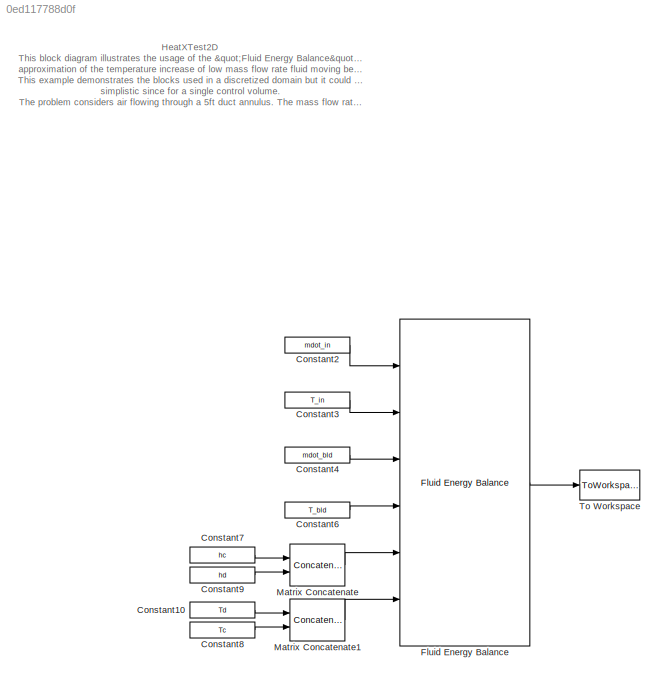
MODEL slx_0ed117788d0f
KIND model
CONFIG AbsTol = auto
CONFIG FixedStep = auto
CONFIG MaxStep = auto
CONFIG MinStep = auto
CONFIG RelTol = 1e-3
CONFIG SampleTimeConstraint = Unconstrained
CONFIG Solver = ode45
CONFIG SolverMode = Auto
CONFIG SolverName = ode45
CONFIG StartTime = 0.0
CONFIG StopTime = 10.0
BLOCK [Constant] Constant10
  Value = Td
BLOCK [Constant] Constant2
  Value = mdot_in
BLOCK [Constant] Constant3
  Value = T_in
BLOCK [Constant] Constant4
  Value = mdot_bld
BLOCK [Constant] Constant6
  Value = T_bld
BLOCK [Constant] Constant7
  Value = hc
BLOCK [Constant] Constant8
  Value = Tc
BLOCK [Constant] Constant9
  Value = hd
BLOCK [Reference] Fluid Energy Balance  REF=lib_Convection_FluidEnergyBalance/Fluid Energy Balance
  As_M = Ac
  BN_M = double(gcb)
  Blds_M = on
  CpData_M = CpData_M
  Ports = [6, 1]
  SourceBlock = lib_Convection_FluidEnergyBalance/Fluid Energy Balance
  SourceType = TSAT: Fluid Energy Balance
  TData_M = TData_M
  Tin0_M = T_in
  x_M = x
  xbld_M = x_bld
BLOCK [Concatenate] Matrix Concatenate
  ConcatenateDimension = 2
  Mode = Multidimensional array
  Ports = [2, 1]
BLOCK [Concatenate] Matrix Concatenate1
  ConcatenateDimension = 2
  Mode = Multidimensional array
  Ports = [2, 1]
BLOCK [ToWorkspace] To Workspace
  FixptAsFi = on
  MaxDataPoints = inf
  Ports = [1]
  SampleTime = -1
  Save2DSignal = 3-D array (concatenate along third dimension)
  VariableName = T
ANNOTATION (root): HeatXTest2D This block diagram illustrates the usage of the "Fluid Energy Balance" block to make a first cut approximation of the temperature increase of low mass flow rate fluid moving between hot surfaces. This example demonstrates the blocks used in a discretized domain but it could be used in a more simplistic since for a single control volume. The problem considers air flowing through a 5ft d...<+740ch>
LINE Constant10:1 -> Matrix Concatenate1:1
LINE Constant2:1 -> Fluid Energy Balance:1
LINE Constant3:1 -> Fluid Energy Balance:2
LINE Constant4:1 -> Fluid Energy Balance:3
LINE Constant6:1 -> Fluid Energy Balance:4
LINE Constant7:1 -> Matrix Concatenate:1
LINE Constant8:1 -> Matrix Concatenate1:2
LINE Constant9:1 -> Matrix Concatenate:2
LINE Fluid Energy Balance:1 -> To Workspace:1
LINE Matrix Concatenate1:1 -> Fluid Energy Balance:6
LINE Matrix Concatenate:1 -> Fluid Energy Balance:5
